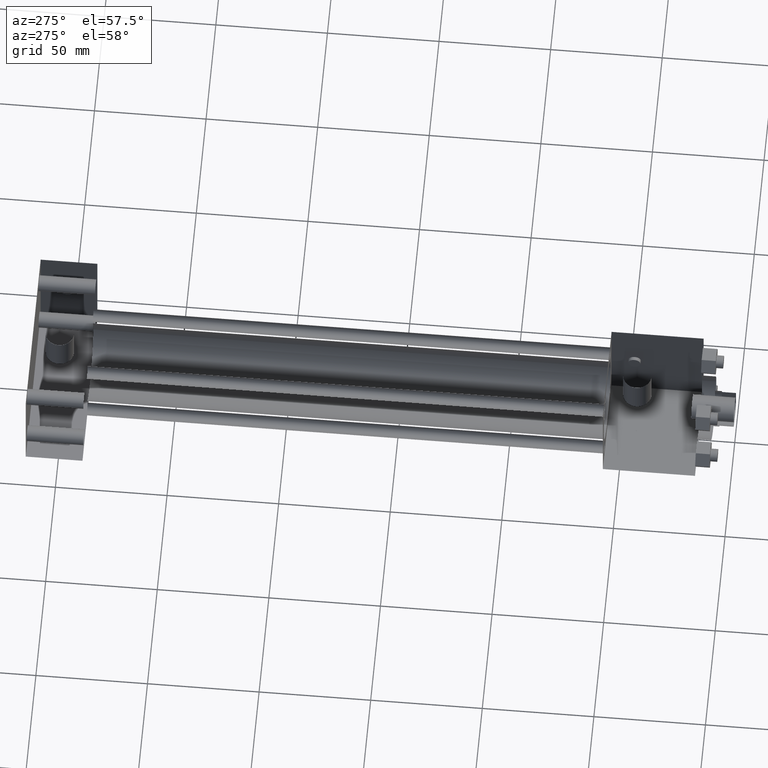
[diagram: clean part render]
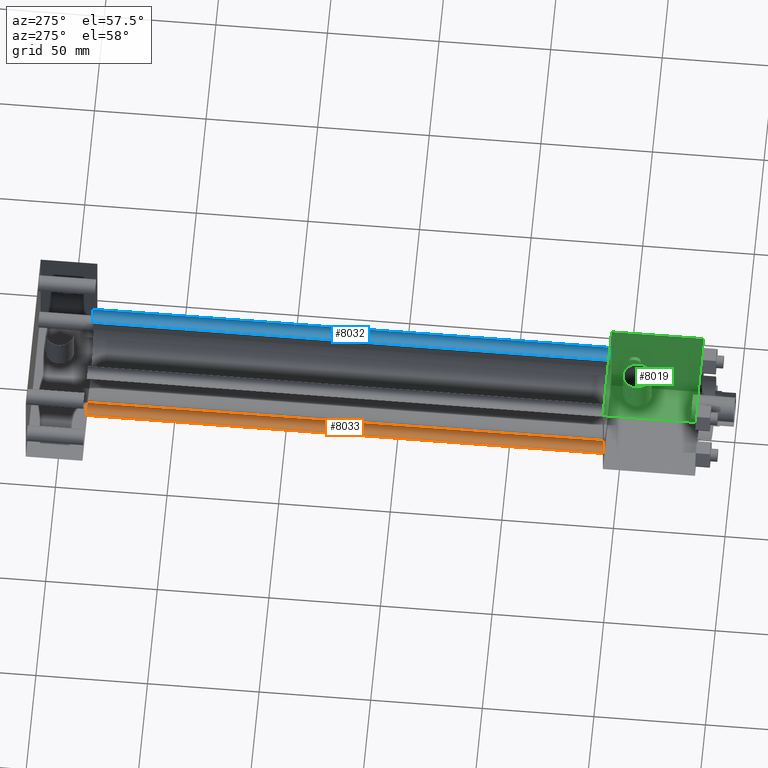
[diagram: same view with three faces highlighted in distinct colors, each labeled with its STEP entity id]
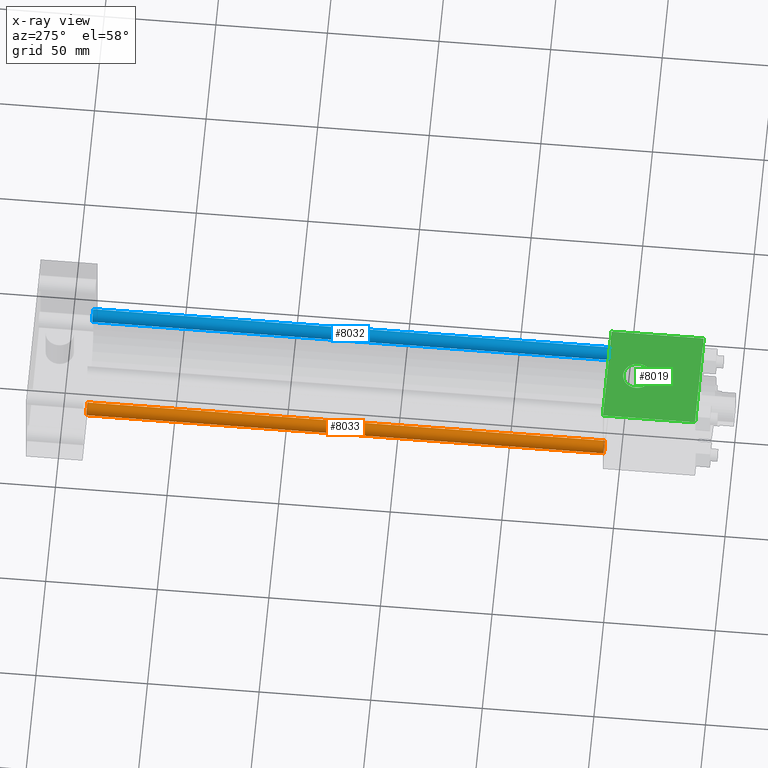
[diagram: x-ray of the same camera — body ghosted, the three highlighted faces saturated]
A machine part, auxiliary view with three faces highlighted in distinct colors.
The next image is the same camera in x-ray (body ghosted, the three faces saturated) — at least one of them is partly hidden behind the body in this view.
Their STEP definitions:

[orange] entity #8033 — the highlighted cylindrical surface (bore or boss wall) has radius 2.8575 mm, axis along (0, -1, 0).
#518=EDGE_CURVE('',#524,#524,#519,.T.);
#519=CIRCLE('',#520,2.857500000E+000);
#520=AXIS2_PLACEMENT_3D('',#521,#522,#523);
#521=CARTESIAN_POINT('',(-1.511300000E+001,5.715000000E+001,-1.511300000E+001));
#522=DIRECTION('',(0.0E+000,1.0E+000,0.0E+000));
#523=DIRECTION('',(1.0E+000,0.0E+000,0.0E+000));
#524=VERTEX_POINT('',#525);
#525=CARTESIAN_POINT('',(-1.225550000E+001,5.715000000E+001,-1.511300000E+001));
#2375=FACE_OUTER_BOUND('',#2377,.T.);
#2376=FACE_BOUND('',#2378,.T.);
#2377=EDGE_LOOP('',(#2379));
#2378=EDGE_LOOP('',(#2380));
#2379=ORIENTED_EDGE('',*,*,#2424,.F.);
#2380=ORIENTED_EDGE('',*,*,#518,.T.);
#2381=CYLINDRICAL_SURFACE('',#2382,2.857500000E+000);
#2382=AXIS2_PLACEMENT_3D('',#2383,#2384,#2385);
#2383=CARTESIAN_POINT('',(-1.511300000E+001,2.889250000E+002,-1.511300000E+001));
#2384=DIRECTION('',(0.0E+000,-1.0E+000,0.0E+000));
#2385=DIRECTION('',(0.0E+000,0.0E+000,-1.0E+000));
#2424=EDGE_CURVE('',#2430,#2430,#2425,.T.);
#2425=CIRCLE('',#2426,2.857500000E+000);
#2426=AXIS2_PLACEMENT_3D('',#2427,#2428,#2429);
#2427=CARTESIAN_POINT('',(-1.511300000E+001,2.889250000E+002,-1.511300000E+001));
#2428=DIRECTION('',(0.0E+000,1.0E+000,0.0E+000));
#2429=DIRECTION('',(1.0E+000,0.0E+000,0.0E+000));
#2430=VERTEX_POINT('',#2431);
#2431=CARTESIAN_POINT('',(-1.225550000E+001,2.889250000E+002,-1.511300000E+001));
#8033=ADVANCED_FACE('',(#2375,#2376),#2381,.T.);

[blue] entity #8032 — the highlighted cylindrical surface (bore or boss wall) has radius 2.8575 mm, axis along (0, 1, 0).
#536=EDGE_CURVE('',#542,#542,#537,.T.);
#537=CIRCLE('',#538,2.857500000E+000);
#538=AXIS2_PLACEMENT_3D('',#539,#540,#541);
#539=CARTESIAN_POINT('',(1.511300000E+001,5.715000000E+001,1.511300000E+001));
#540=DIRECTION('',(0.0E+000,-1.0E+000,0.0E+000));
#541=DIRECTION('',(-1.0E+000,0.0E+000,0.0E+000));
#542=VERTEX_POINT('',#543);
#543=CARTESIAN_POINT('',(1.225550000E+001,5.715000000E+001,1.511300000E+001));
#2364=FACE_OUTER_BOUND('',#2366,.T.);
#2365=FACE_BOUND('',#2367,.T.);
#2366=EDGE_LOOP('',(#2368));
#2367=EDGE_LOOP('',(#2369));
#2368=ORIENTED_EDGE('',*,*,#536,.F.);
#2369=ORIENTED_EDGE('',*,*,#2416,.T.);
#2370=CYLINDRICAL_SURFACE('',#2371,2.857500000E+000);
#2371=AXIS2_PLACEMENT_3D('',#2372,#2373,#2374);
#2372=CARTESIAN_POINT('',(1.511300000E+001,5.715000000E+001,1.511300000E+001));
#2373=DIRECTION('',(0.0E+000,1.0E+000,0.0E+000));
#2374=DIRECTION('',(0.0E+000,0.0E+000,-1.0E+000));
#2416=EDGE_CURVE('',#2422,#2422,#2417,.T.);
#2417=CIRCLE('',#2418,2.857500000E+000);
#2418=AXIS2_PLACEMENT_3D('',#2419,#2420,#2421);
#2419=CARTESIAN_POINT('',(1.511300000E+001,2.889250000E+002,1.511300000E+001));
#2420=DIRECTION('',(0.0E+000,-1.0E+000,0.0E+000));
#2421=DIRECTION('',(-1.0E+000,0.0E+000,0.0E+000));
#2422=VERTEX_POINT('',#2423);
#2423=CARTESIAN_POINT('',(1.225550000E+001,2.889250000E+002,1.511300000E+001));
#8032=ADVANCED_FACE('',(#2364,#2365),#2370,.T.);

[green] entity #8019 — the highlighted planar face has unit normal (0, 0, 1).
#494=VERTEX_POINT('',#495);
#495=CARTESIAN_POINT('',(-2.222500000E+001,5.715000000E+001,2.222500000E+001));
#496=EDGE_CURVE('',#501,#494,#497,.T.);
#497=LINE('',#498,#499);
#498=CARTESIAN_POINT('',(2.222500000E+001,5.715000000E+001,2.222500000E+001));
#499=VECTOR('',#500,1.0E+000);
#500=DIRECTION('',(-1.0E+000,0.0E+000,0.0E+000));
#501=VERTEX_POINT('',#502);
#502=CARTESIAN_POINT('',(2.222500000E+001,5.715000000E+001,2.222500000E+001));
#590=FACE_OUTER_BOUND('',#592,.T.);
#591=FACE_BOUND('',#593,.T.);
#592=EDGE_LOOP('',(#594,#595,#596,#597));
#593=EDGE_LOOP('',(#617));
#594=ORIENTED_EDGE('',*,*,#598,.T.);
#595=ORIENTED_EDGE('',*,*,#605,.F.);
#596=ORIENTED_EDGE('',*,*,#612,.F.);
#597=ORIENTED_EDGE('',*,*,#496,.T.);
#598=EDGE_CURVE('',#494,#603,#599,.T.);
#599=LINE('',#600,#601);
#600=CARTESIAN_POINT('',(-2.222500000E+001,5.715000000E+001,2.222500000E+001));
#601=VECTOR('',#602,1.0E+000);
#602=DIRECTION('',(0.0E+000,-1.0E+000,0.0E+000));
#603=VERTEX_POINT('',#604);
#604=CARTESIAN_POINT('',(-2.222500000E+001,1.587500000E+001,2.222500000E+001));
#605=EDGE_CURVE('',#610,#603,#606,.T.);
#606=LINE('',#607,#608);
#607=CARTESIAN_POINT('',(2.222500000E+001,1.587500000E+001,2.222500000E+001));
#608=VECTOR('',#609,1.0E+000);
#609=DIRECTION('',(-1.0E+000,0.0E+000,0.0E+000));
#610=VERTEX_POINT('',#611);
#611=CARTESIAN_POINT('',(2.222500000E+001,1.587500000E+001,2.222500000E+001));
#612=EDGE_CURVE('',#501,#610,#613,.T.);
#613=LINE('',#614,#615);
#614=CARTESIAN_POINT('',(2.222500000E+001,5.715000000E+001,2.222500000E+001));
#615=VECTOR('',#616,1.0E+000);
#616=DIRECTION('',(0.0E+000,-1.0E+000,0.0E+000));
#617=ORIENTED_EDGE('',*,*,#618,.T.);
#618=EDGE_CURVE('',#624,#624,#619,.T.);
#619=CIRCLE('',#620,6.350000000E+000);
#620=AXIS2_PLACEMENT_3D('',#621,#622,#623);
#621=CARTESIAN_POINT('',(0.000000000E+000,4.365625000E+001,2.222500000E+001));
#622=DIRECTION('',(0.0E+000,0.0E+000,-1.0E+000));
#623=DIRECTION('',(1.0E+000,0.0E+000,0.0E+000));
#624=VERTEX_POINT('',#625);
#625=CARTESIAN_POINT('',(6.350000000E+000,4.365625000E+001,2.222500000E+001));
#626=PLANE('',#627);
#627=AXIS2_PLACEMENT_3D('',#628,#629,#630);
#628=CARTESIAN_POINT('',(2.222500000E+001,5.715000000E+001,2.222500000E+001));
#629=DIRECTION('',(0.0E+000,0.0E+000,1.0E+000));
#630=DIRECTION('',(1.0E+000,0.0E+000,0.0E+000));
#8019=ADVANCED_FACE('',(#590,#591),#626,.T.);